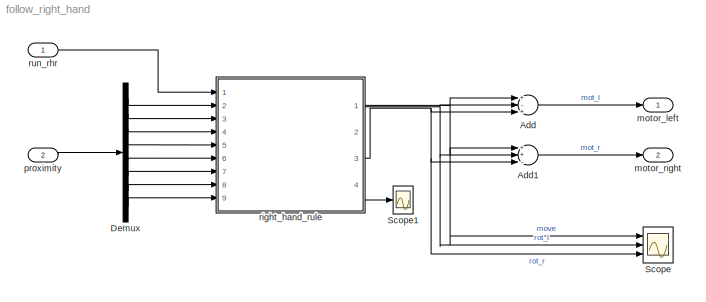
MODEL follow_right_hand
KIND model
BLOCK [Sum] Add
  InputSameDT = off
  Inputs = +-+
  OutDataTypeStr = Inherit: Inherit via internal rule
  Ports = [3, 1]
  SID = 15
  SaturateOnIntegerOverflow = off
BLOCK [Sum] Add1
  InputSameDT = off
  Inputs = ++-
  OutDataTypeStr = Inherit: Inherit via internal rule
  Ports = [3, 1]
  SID = 16
  SaturateOnIntegerOverflow = off
BLOCK [Demux] Demux
  DisplayOption = bar
  Outputs = 8
  Ports = [1, 8]
  SID = 11
BLOCK [Scope] Scope
  NumInputPorts = 3
  Ports = [3]
  SID = 14
  ScopeSpecificationString = Simulink.scopes.TimeScopeBlockCfg('CurrentConfiguration', extmgr.ConfigurationSet(extmgr.Configuration('Core','General UI',true),extmgr.Configuration('Core','Source UI',true),extmgr.Configuration('Sources','WiredSimulink',true,'DataLoggingLimitDataPoints',true,'DataLoggingMaxPoints','10000'),extmgr.Configuration('Visuals','Time Domain',true,'SerializedDisplays',{struct('MinYLimReal','0.9','MaxYLim...<+3419ch>
BLOCK [Scope] Scope1
  Ports = [1]
  SID = 17
  ScopeSpecificationString = Simulink.scopes.TimeScopeBlockCfg('CurrentConfiguration', extmgr.ConfigurationSet(extmgr.Configuration('Core','General UI',true),extmgr.Configuration('Core','Source UI',true),extmgr.Configuration('Sources','WiredSimulink',true,'DataLoggingVariableName','ScopeData1','DataLoggingLimitDataPoints',true,'DataLoggingMaxPoints','10000'),extmgr.Configuration('Visuals','Time Domain',true,'SerializedDisplay...<+1565ch>
BLOCK [Outport] motor_left
  IconDisplay = Port number
  SID = 4
BLOCK [Outport] motor_right
  IconDisplay = Port number
  Port = 2
  SID = 5
BLOCK [Inport] proximity
  IconDisplay = Port number
  Port = 2
  PortDimensions = [8]
  SID = 1
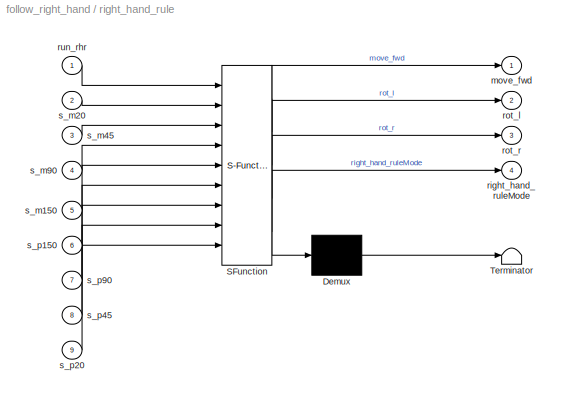
BLOCK [SubSystem] right_hand_rule
  ErrorFcn = Stateflow.Translate.translate
  PermitHierarchicalResolution = ExplicitOnly
  Ports = [9, 4]
  RequestExecContextInheritance = off
  SFBlockType = Chart
  SID = 8
  TreatAsAtomicUnit = on
  Variant = off
BLOCK [Demux] right_hand_rule/ Demux 
  Outputs = 1
  Ports = [1, 1]
  SID = 8::78
BLOCK [S-Function] right_hand_rule/ SFunction 
  EnableBusSupport = on
  FunctionName = sf_sfun
  PortCounts = [9 5]
  Ports = [9, 5]
  SFunctionDeploymentMode = off
  SID = 8::77
  Tag = Stateflow S-Function follow_right_hand 3
BLOCK [Terminator] right_hand_rule/ Terminator 
  SID = 8::79
BLOCK [Outport] right_hand_rule/move_fwd
  IconDisplay = Port number
  SID = 8::83
BLOCK [Outport] right_hand_rule/right_hand_ruleMode
  IconDisplay = Port number
  Port = 4
  SID = 8::102
BLOCK [Outport] right_hand_rule/rot_l
  IconDisplay = Port number
  Port = 2
  SID = 8::84
BLOCK [Outport] right_hand_rule/rot_r
  IconDisplay = Port number
  Port = 3
  SID = 8::85
BLOCK [Inport] right_hand_rule/run_rhr
  IconDisplay = Port number
  SID = 8::101
BLOCK [Inport] right_hand_rule/s_m150
  IconDisplay = Port number
  Port = 5
  SID = 8::86
BLOCK [Inport] right_hand_rule/s_m20
  IconDisplay = Port number
  Port = 2
  SID = 8::89
BLOCK [Inport] right_hand_rule/s_m45
  IconDisplay = Port number
  Port = 3
  SID = 8::88
BLOCK [Inport] right_hand_rule/s_m90
  IconDisplay = Port number
  Port = 4
  SID = 8::87
BLOCK [Inport] right_hand_rule/s_p150
  IconDisplay = Port number
  Port = 6
  SID = 8::93
BLOCK [Inport] right_hand_rule/s_p20
  IconDisplay = Port number
  Port = 9
  SID = 8::90
BLOCK [Inport] right_hand_rule/s_p45
  IconDisplay = Port number
  Port = 8
  SID = 8::91
BLOCK [Inport] right_hand_rule/s_p90
  IconDisplay = Port number
  Port = 7
  SID = 8::92
BLOCK [Inport] run_rhr
  IconDisplay = Port number
  SID = 20
LINE Add1:1 -> motor_right:1
LINE Add:1 -> motor_left:1
LINE Demux:1 -> right_hand_rule:2
LINE Demux:2 -> right_hand_rule:3
LINE Demux:3 -> right_hand_rule:4
LINE Demux:4 -> right_hand_rule:5
LINE Demux:5 -> right_hand_rule:6
LINE Demux:6 -> right_hand_rule:7
LINE Demux:7 -> right_hand_rule:8
LINE Demux:8 -> right_hand_rule:9
LINE proximity:1 -> Demux:1
LINE right_hand_rule/ Demux :1 -> right_hand_rule/ Terminator :1
LINE right_hand_rule/ SFunction :1 -> right_hand_rule/ Demux :1
LINE right_hand_rule/ SFunction :2 -> right_hand_rule/move_fwd:1
LINE right_hand_rule/ SFunction :3 -> right_hand_rule/rot_l:1
LINE right_hand_rule/ SFunction :4 -> right_hand_rule/rot_r:1
LINE right_hand_rule/ SFunction :5 -> right_hand_rule/right_hand_ruleMode:1
LINE right_hand_rule/run_rhr:1 -> right_hand_rule/ SFunction :1
LINE right_hand_rule/s_m150:1 -> right_hand_rule/ SFunction :5
LINE right_hand_rule/s_m20:1 -> right_hand_rule/ SFunction :2
LINE right_hand_rule/s_m45:1 -> right_hand_rule/ SFunction :3
LINE right_hand_rule/s_m90:1 -> right_hand_rule/ SFunction :4
LINE right_hand_rule/s_p150:1 -> right_hand_rule/ SFunction :6
LINE right_hand_rule/s_p20:1 -> right_hand_rule/ SFunction :9
LINE right_hand_rule/s_p45:1 -> right_hand_rule/ SFunction :8
LINE right_hand_rule/s_p90:1 -> right_hand_rule/ SFunction :7
NET right_hand_rule:1 -> Add1:1, Add:1, Scope:1
NET right_hand_rule:2 -> Add1:2, Add:2, Scope:2
NET right_hand_rule:3 -> Add1:3, Add:3, Scope:3
LINE right_hand_rule:4 -> Scope1:1
LINE run_rhr:1 -> right_hand_rule:1
note: NET lines group one-source signal fan-out (src -> all destinations, sorted); 1:1 wires keep LINE
CHART right_hand_rule states=14 transitions=22
  STATE_LABEL 'findWall\\nentry:\\nmove_fwd=mv_per_sec;\\nrot_l = 0;\\nrot_r = 0;'
  STATE_LABEL 'checkWall\\n% known: nothing\\nentry:\\nmove_fwd = 0;\\nrot_r = 0;\\nrot_l = 0;\\n[wall_p wall_rot] = find_wall([s_m150, s_m90, s_m45, s_m20, s_p20, s_p45, s_p90, s_p150]);'
  STATE_LABEL 'wallWaiter'
  STATE_LABEL 'claustrophobia\\n% known: have -20, -45, -90\\nentry:\\nmove_fwd = 0;\\nrot_l = 1;\\nrot_r = 0;'
  STATE_LABEL 'avoidCollision\\n% known: have -20, -45\\nentry:\\nmove_fwd = 0;\\nrot_l = 1;\\nrot_r = 0;'
  STATE_LABEL 'orientToWall\\n% known: have -20\\nentry:\\nmove_fwd = mv_per_sec;\\nrot_r = 0;\\nrot_l = 0;'
  STATE_LABEL 'follow\\n% known: have -45, -90\\nentry:\\nmove_fwd = mv_per_sec;\\nrot_l = 0;\\nrot_r = 0;'
  STATE_LABEL 'runClose\\n% known: (should) have -45\\nentry:\\nmove_fwd = mv_per_sec;\\nrot_l = 0;\\nrot_r = 0;'
  STATE_LABEL "=> Move roughly sin(70 degree)*(x length unit) towards straight wall\\n=> if we just drifted away, that's all we need to find the wall again\\n=> circle must have at least the radius of the TinBot, so:\\n=> requirement: x >> TinBotDIAMETER * cot(44 degree)"
  STATE_LABEL 'stayClose\\n% known: have -90, NOT have -45\\nentry:\\nmove_fwd = 0;\\nrot_l = 0;\\nrot_r = 1;'
  STATE_LABEL 'goOn'
  STATE_LABEL '=> Move roughly sin(5 degree)*(10 length unit) away from straight wall\\n=> Make sure that runClose moves at least this much towards the wall again\\n=> requirement: sin(70 degree)*x >> sin(5 degree)*(10 length unit)\\n=> requirement: 70 degree <= 90 degree'
  STATE_LABEL 'Inactive\\nen:\\nrot_r = 0;\\nrot_l = 0;\\nmove_fwd=0;'
  STATE_LABEL 'Active'
